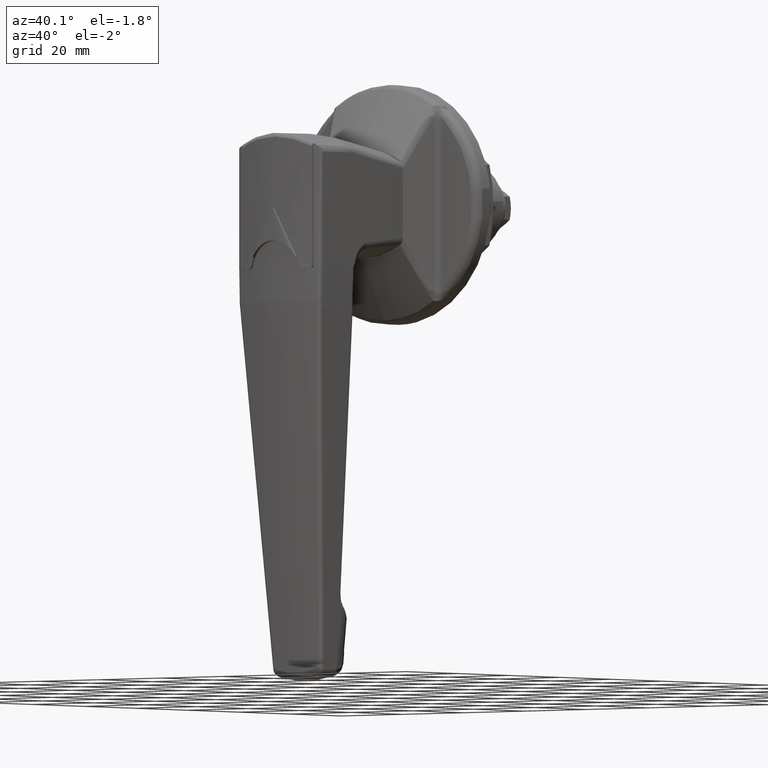
[diagram: clean part render]
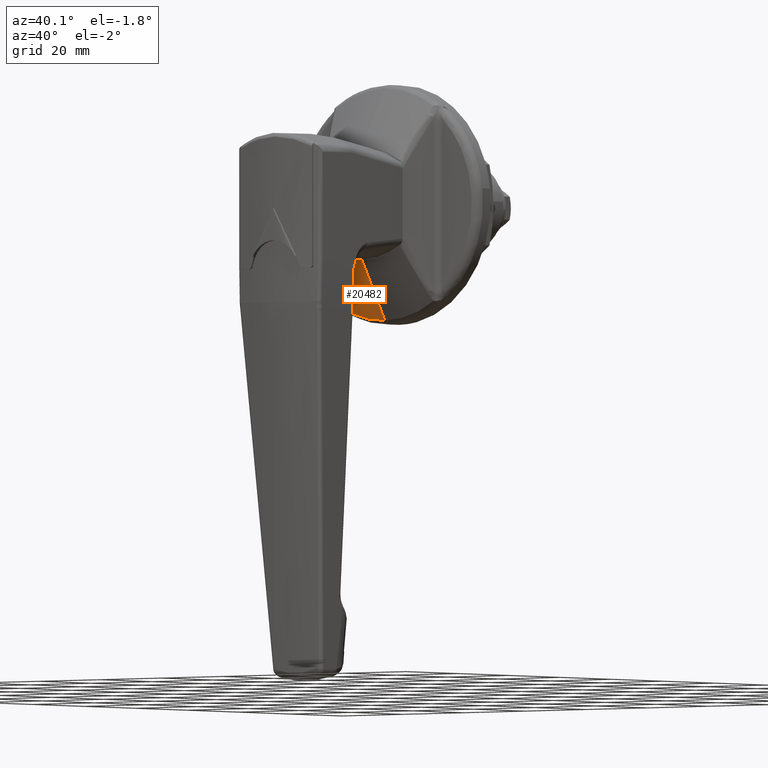
[diagram: same view with one face highlighted and labeled with its STEP entity id]
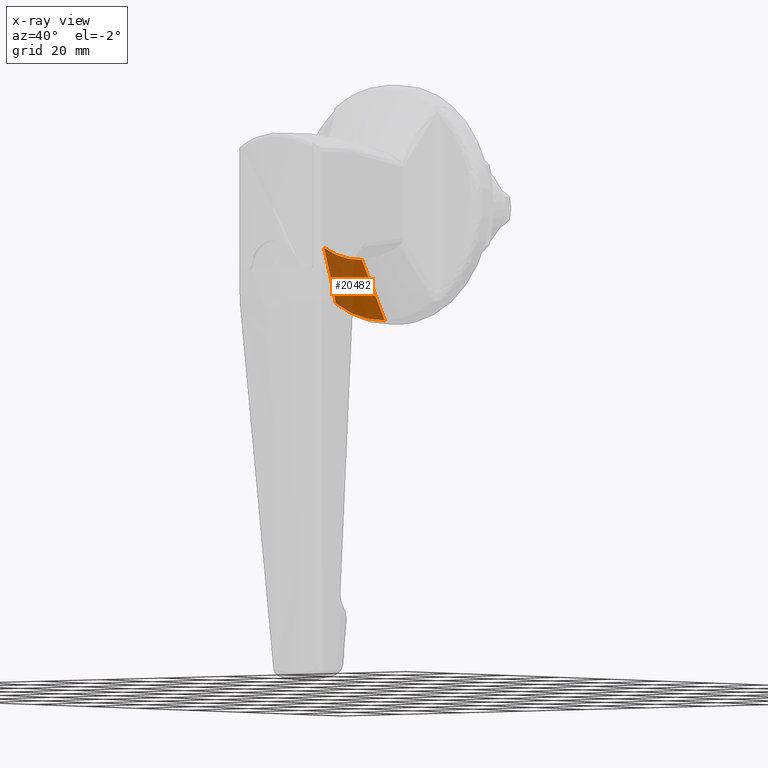
[diagram: x-ray of the same camera — body ghosted, the highlighted face saturated]
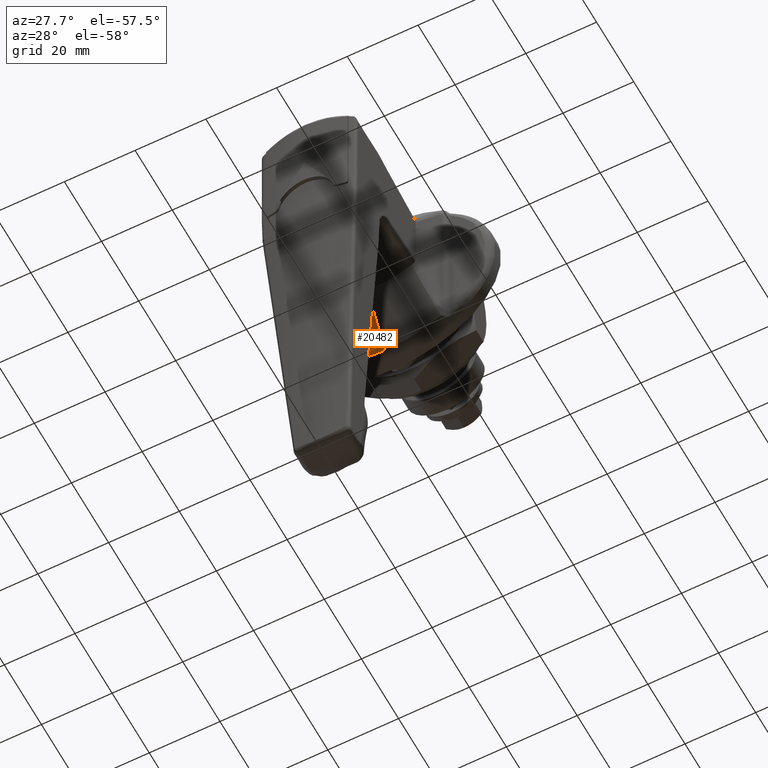
[diagram: same view with one face highlighted and labeled with its STEP entity id]
A machine part, auxiliary view. The second image highlights one B-rep face of the part: STEP entity #20482.
The next image is the same camera in x-ray: the body ghosted, the highlighted face saturated — about 51% of this face is hidden behind the body in this view.
A second angle (auxiliary view) of the same face is appended — the face is thin or edge-on in the first view.
In plain terms, the highlighted face is a freeform B-spline surface patch.
Its self-contained STEP definition (entity closure, byte-faithful):
#16574=CARTESIAN_POINT('',(-14.451053058517060,12.362368435587200,-10.881697850932481));
#16575=VERTEX_POINT('',#16574);
#16759=CARTESIAN_POINT('',(-7.197291971983741,15.208814957476701,-22.313875458270950));
#16760=VERTEX_POINT('',#16759);
#16774=CARTESIAN_POINT('',(-14.451053058517060,12.362368435587200,-10.881697850932481));
#16775=CARTESIAN_POINT('',(-14.111225369023570,12.502690098024290,-11.327185086174749));
#16776=CARTESIAN_POINT('',(-13.784060508161200,12.634059000580180,-11.785041987313070));
#16777=CARTESIAN_POINT('',(-13.148146195108360,12.886028894088669,-12.714860547054000));
#16778=CARTESIAN_POINT('',(-12.839350841647560,13.006591046179530,-13.186830881644839));
#16779=CARTESIAN_POINT('',(-12.232847235237250,13.241884917743670,-14.139138514047820));
#16780=CARTESIAN_POINT('',(-11.935156669862231,13.356581511532729,-14.619495437695250));
#16781=CARTESIAN_POINT('',(-11.345443860043630,13.583396920218719,-15.584388945435720));
#16782=CARTESIAN_POINT('',(-11.053439010068541,13.695496554818240,-16.068941095374161));
#16783=CARTESIAN_POINT('',(-10.179666460884739,14.031502759512691,-17.524074028147290));
#16784=CARTESIAN_POINT('',(-9.600007589811302,14.255140960272531,-18.496135905567559));
#16785=CARTESIAN_POINT('',(-8.715365668782166,14.601432747143621,-19.941485797806461));
#16786=CARTESIAN_POINT('',(-8.418012814228208,14.718645610090419,-20.421182562823599));
#16787=CARTESIAN_POINT('',(-7.814972427223345,14.958763554873240,-21.373625165153889));
#16788=CARTESIAN_POINT('',(-7.509322060345594,15.081644605666060,-21.846401641123041));
#16789=CARTESIAN_POINT('',(-7.197291971983719,15.208814957476729,-22.313875458270932));
#16790=B_SPLINE_CURVE_WITH_KNOTS('',3,(#16774,#16775,#16776,#16777,#16778,#16779,#16780,#16781,#16782,#16783,#16784,#16785,#16786,#16787,#16788,#16789),.UNSPECIFIED.,.F.,.U.,(4,2,2,2,2,2,2,4),(0.0,0.125000000000000,0.250000000000000,0.374999999999999,0.499999999999999,0.749999999999999,0.875000000000000,1.0),.UNSPECIFIED.);
#16791=EDGE_CURVE('',#16575,#16760,#16790,.T.);
#16896=CARTESIAN_POINT('',(-5.624244869299449,16.008180144531501,-24.431308072832451));
#16897=VERTEX_POINT('',#16896);
#16910=CARTESIAN_POINT('',(-7.197291971983741,15.208814957476701,-22.313875458270950));
#16911=CARTESIAN_POINT('',(-7.072450999549137,15.259694891742789,-22.500908337782160));
#16912=CARTESIAN_POINT('',(-6.946063951108953,15.318002388862229,-22.683988607187541));
#16913=CARTESIAN_POINT('',(-6.690053966560538,15.445929851961189,-23.043474554604011));
#16914=CARTESIAN_POINT('',(-6.560422126691133,15.515618621447510,-23.219847643543151));
#16915=CARTESIAN_POINT('',(-6.297912436418839,15.660226624407899,-23.568207765296201));
#16916=CARTESIAN_POINT('',(-6.165022948647886,15.735196690941210,-23.740166962368740));
#16917=CARTESIAN_POINT('',(-5.896465970784935,15.879492856919359,-24.084152259377792));
#16918=CARTESIAN_POINT('',(-5.760836136975050,15.948407251415279,-24.256361759588529));
#16919=CARTESIAN_POINT('',(-5.624244869299449,16.008180144531501,-24.431308072832451));
#16920=B_SPLINE_CURVE_WITH_KNOTS('',3,(#16910,#16911,#16912,#16913,#16914,#16915,#16916,#16917,#16918,#16919),.UNSPECIFIED.,.F.,.U.,(4,2,2,2,4),(0.0,0.250000000000000,0.500000000000000,0.750000000000000,1.0),.UNSPECIFIED.);
#16921=EDGE_CURVE('',#16760,#16897,#16920,.T.);
#18945=CARTESIAN_POINT('',(-5.581927654844491,8.673617E-016,-29.025042672511301));
#18946=VERTEX_POINT('',#18945);
#18960=CARTESIAN_POINT('',(-5.624244869299437,16.008180144531519,-24.431308072832479));
#18961=CARTESIAN_POINT('',(-5.622466548564129,15.410877318244930,-24.808119061505359));
#18962=CARTESIAN_POINT('',(-5.620501301803851,14.802345510378441,-25.162139252331681));
#18963=CARTESIAN_POINT('',(-5.616351693028748,13.563177924690351,-25.825317526828130));
#18964=CARTESIAN_POINT('',(-5.614167415469229,12.932541202324529,-26.134473694092328));
#18965=CARTESIAN_POINT('',(-5.609682147804108,11.649138187766550,-26.707872660358809));
#18966=CARTESIAN_POINT('',(-5.607375430121235,10.996352876654710,-26.972076821087839));
#18967=CARTESIAN_POINT('',(-5.604450165434913,10.166387671824110,-27.273951702530010));
#18968=CARTESIAN_POINT('',(-5.603864052473564,9.999695031377051,-27.332906815049260));
#18969=CARTESIAN_POINT('',(-5.602692983195841,9.664904401503570,-27.447964853142121));
#18970=CARTESIAN_POINT('',(-5.602107727358613,9.496717505839605,-27.504093929343249));
#18971=CARTESIAN_POINT('',(-5.600364566135034,8.991781185948192,-27.667630753936450));
#18972=CARTESIAN_POINT('',(-5.599217493954201,8.654138631539441,-27.770375122057018));
#18973=CARTESIAN_POINT('',(-5.593617736065377,6.960924651745222,-28.253254977325248));
#18974=CARTESIAN_POINT('',(-5.589580952457887,5.590427350869951,-28.541344119569921));
#18975=CARTESIAN_POINT('',(-5.585205205428792,3.511539189279996,-28.830775849173289));
#18976=CARTESIAN_POINT('',(-5.584024413920272,2.814704052844249,-28.903374542669411));
#18977=CARTESIAN_POINT('',(-5.582795687202784,1.763605090953767,-28.976224323483141));
#18978=CARTESIAN_POINT('',(-5.582476611538223,1.412263520365674,-28.994494153042229));
#18979=CARTESIAN_POINT('',(-5.582151113033505,0.883775648059627,-29.012801017119539));
#18980=CARTESIAN_POINT('',(-5.582026666467596,0.619162749443828,-29.019679465325218));
#18981=CARTESIAN_POINT('',(-5.581952618777707,0.309798358271036,-29.023700591307509));
#18982=CARTESIAN_POINT('',(-5.581933922457353,0.154953301777940,-29.024706989787330));
#18983=CARTESIAN_POINT('',(-5.581929896135780,0.088556177992792,-29.024922768692601));
#18984=CARTESIAN_POINT('',(-5.581928104435167,0.044283654018016,-29.025018683916759));
#18985=CARTESIAN_POINT('',(-5.581927664399813,0.021948158494909,-29.025042656502020));
#18986=CARTESIAN_POINT('',(-5.581927654844491,8.673617E-016,-29.025042672511301));
#18987=B_SPLINE_CURVE_WITH_KNOTS('',3,(#18960,#18961,#18962,#18963,#18964,#18965,#18966,#18967,#18968,#18969,#18970,#18971,#18972,#18973,#18974,#18975,#18976,#18977,#18978,#18979,#18980,#18981,#18982,#18983,#18984,#18985,#18986),.UNSPECIFIED.,.F.,.U.,(4,2,2,2,2,2,2,2,2,2,1,1,1,2,4),(0.0,0.125000000000000,0.250000000000000,0.375000000000001,0.406250000000001,0.437500000000001,0.500000000000001,0.750000000000000,0.875000000000000,0.937500000000000,0.968750000000000,0.984375000000000,0.992187500000000,0.996093750000000,1.0),.UNSPECIFIED.);
#18988=EDGE_CURVE('',#16897,#18946,#18987,.T.);
#19582=CARTESIAN_POINT('',(-14.479337245030599,8.673617E-016,-14.118387861728239));
#19583=VERTEX_POINT('',#19582);
#19584=CARTESIAN_POINT('',(-14.479337245030599,8.673617E-016,-14.118387861728239));
#19585=CARTESIAN_POINT('',(-14.479337249357220,0.008351396404114,-14.118387854479829));
#19586=CARTESIAN_POINT('',(-14.479337214227860,0.016933146408505,-14.118383623770280));
#19587=CARTESIAN_POINT('',(-14.479337090979151,0.033865000160555,-14.118366673800590));
#19588=CARTESIAN_POINT('',(-14.479336813648031,0.059260655420799,-14.118328538593319));
#19589=CARTESIAN_POINT('',(-14.479335519075139,0.118502312943271,-14.118150621496939));
#19590=CARTESIAN_POINT('',(-14.479330337947690,0.236926191044787,-14.117439338966181));
#19591=CARTESIAN_POINT('',(-14.479309590380669,0.473536581342397,-14.114597264499830));
#19592=CARTESIAN_POINT('',(-14.479226406753950,0.945810826652925,-14.103252592391810));
#19593=CARTESIAN_POINT('',(-14.479083114589320,1.349004273099235,-14.083882146496849));
#19594=CARTESIAN_POINT('',(-14.478698745539109,2.153260751850154,-14.032400865126901));
#19595=CARTESIAN_POINT('',(-14.478312313276531,2.686593071755257,-13.981104104197099));
#19596=CARTESIAN_POINT('',(-14.476741855450401,4.278167607732115,-13.776845898541190));
#19597=CARTESIAN_POINT('',(-14.475150738830360,5.328019282682781,-13.573707175546391));
#19598=CARTESIAN_POINT('',(-14.471802083971390,6.885818422413356,-13.167465814881171));
#19599=CARTESIAN_POINT('',(-14.470524278403451,7.402247396836181,-13.015083914090299));
#19600=CARTESIAN_POINT('',(-14.468339226682991,8.172535124317518,-12.760463278453351));
#19601=CARTESIAN_POINT('',(-14.467565783405730,8.428643804282913,-12.671207628157459));
#19602=CARTESIAN_POINT('',(-14.465931492021831,8.937342565002785,-12.484654613521270));
#19603=CARTESIAN_POINT('',(-14.465069454961260,9.190321347770809,-12.387220994703840));
#19604=CARTESIAN_POINT('',(-14.460536557134761,10.445513270005360,-11.880416002885971));
#19605=CARTESIAN_POINT('',(-14.456197467552080,11.419167737198761,-11.412330647129920));
#19606=CARTESIAN_POINT('',(-14.451053058517060,12.362368435587200,-10.881697850932481));
#19607=B_SPLINE_CURVE_WITH_KNOTS('',3,(#19584,#19585,#19586,#19587,#19588,#19589,#19590,#19591,#19592,#19593,#19594,#19595,#19596,#19597,#19598,#19599,#19600,#19601,#19602,#19603,#19604,#19605,#19606),.UNSPECIFIED.,.F.,.U.,(4,2,1,1,1,1,1,2,2,2,2,2,2,4),(0.0,0.001953125000000,0.003906250000000,0.007812500000000,0.015625000000000,0.031250000000000,0.062500000000000,0.125000000000000,0.250000000000000,0.499999999999999,0.624999999999999,0.687499999999999,0.749999999999999,1.0),.UNSPECIFIED.);
#19608=EDGE_CURVE('',#19583,#16575,#19607,.T.);
#20450=CARTESIAN_POINT('',(-14.532721702582300,2.602051E-015,-14.028947932846179));
#20451=CARTESIAN_POINT('',(-11.531328867489391,2.590236E-015,-19.057459489022811));
#20452=CARTESIAN_POINT('',(-8.529936032396112,-4.946132E-016,-24.085971045199390));
#20453=CARTESIAN_POINT('',(-5.528543197303158,-8.366568E-016,-29.114482601376011));
#20454=CARTESIAN_POINT('',(-14.532721702582300,2.388344565596310,-14.028947932846179));
#20455=CARTESIAN_POINT('',(-11.531328867489391,2.890736111928995,-19.057459489022811));
#20456=CARTESIAN_POINT('',(-8.529936032396112,3.862540520718954,-24.085971045199390));
#20457=CARTESIAN_POINT('',(-5.528543197303158,3.968759771309029,-29.114482601376011));
#20458=CARTESIAN_POINT('',(-14.532721702582300,6.718414410618387,-13.397641945341560));
#20459=CARTESIAN_POINT('',(-11.531328867489361,7.994151799524023,-18.075702269600718));
#20460=CARTESIAN_POINT('',(-8.529936032396089,10.735533583284409,-23.100566684339171));
#20461=CARTESIAN_POINT('',(-5.528543197303105,11.153139984877120,-27.725120445559071));
#20462=CARTESIAN_POINT('',(-14.532721702582300,10.670668529822770,-11.720497774547400));
#20463=CARTESIAN_POINT('',(-11.531328867489311,12.449957840629009,-15.614113740825550));
#20464=CARTESIAN_POINT('',(-8.529936032396044,16.370911360403031,-19.950672483249569));
#20465=CARTESIAN_POINT('',(-5.528543197303017,17.293993156760639,-23.952623938212550));
#20466=CARTESIAN_POINT('',(-14.532721702582290,12.375002120281760,-10.748791508987850));
#20467=CARTESIAN_POINT('',(-11.531328867489281,14.333013025667899,-14.228999586955441));
#20468=CARTESIAN_POINT('',(-8.529936032396025,18.540780056462289,-18.207804950356959));
#20469=CARTESIAN_POINT('',(-5.528543197302974,19.763971603698170,-21.782481670102019));
#20470=B_SPLINE_SURFACE_WITH_KNOTS('',3,3,((#20450,#20454,#20458,#20462,#20466),(#20451,#20455,#20459,#20463,#20467),(#20452,#20456,#20460,#20464,#20468),(#20453,#20457,#20461,#20465,#20469)),.UNSPECIFIED.,.F.,.F.,.U.,(4,4),(4,1,4),(0.0,17.579778096460370),(0.0,11.906279313927090,22.071244786334120),.UNSPECIFIED.);
#20471=ORIENTED_EDGE('',*,*,#19608,.T.);
#20472=ORIENTED_EDGE('',*,*,#16791,.T.);
#20473=ORIENTED_EDGE('',*,*,#16921,.T.);
#20474=ORIENTED_EDGE('',*,*,#18988,.T.);
#20475=CARTESIAN_POINT('',(-5.581927654844491,8.673617E-016,-29.025042672511301));
#20476=CARTESIAN_POINT('',(-14.479337245030599,8.673617E-016,-14.118387861728239));
#20477=QUASI_UNIFORM_CURVE('',1,(#20475,#20476),.UNSPECIFIED.,.F.,.U.);
#20478=EDGE_CURVE('',#18946,#19583,#20477,.T.);
#20479=ORIENTED_EDGE('',*,*,#20478,.T.);
#20480=EDGE_LOOP('',(#20471,#20472,#20473,#20474,#20479));
#20481=FACE_OUTER_BOUND('',#20480,.T.);
#20482=ADVANCED_FACE('',(#20481),#20470,.F.);